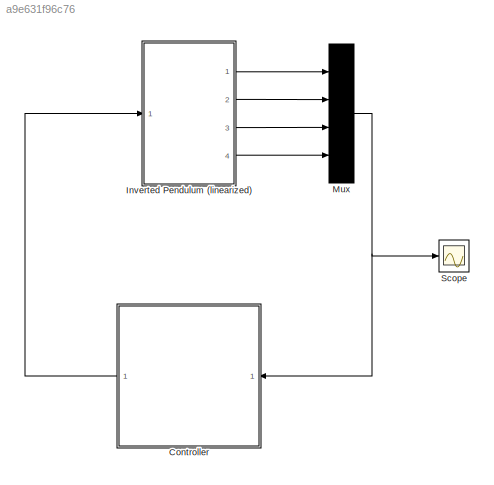
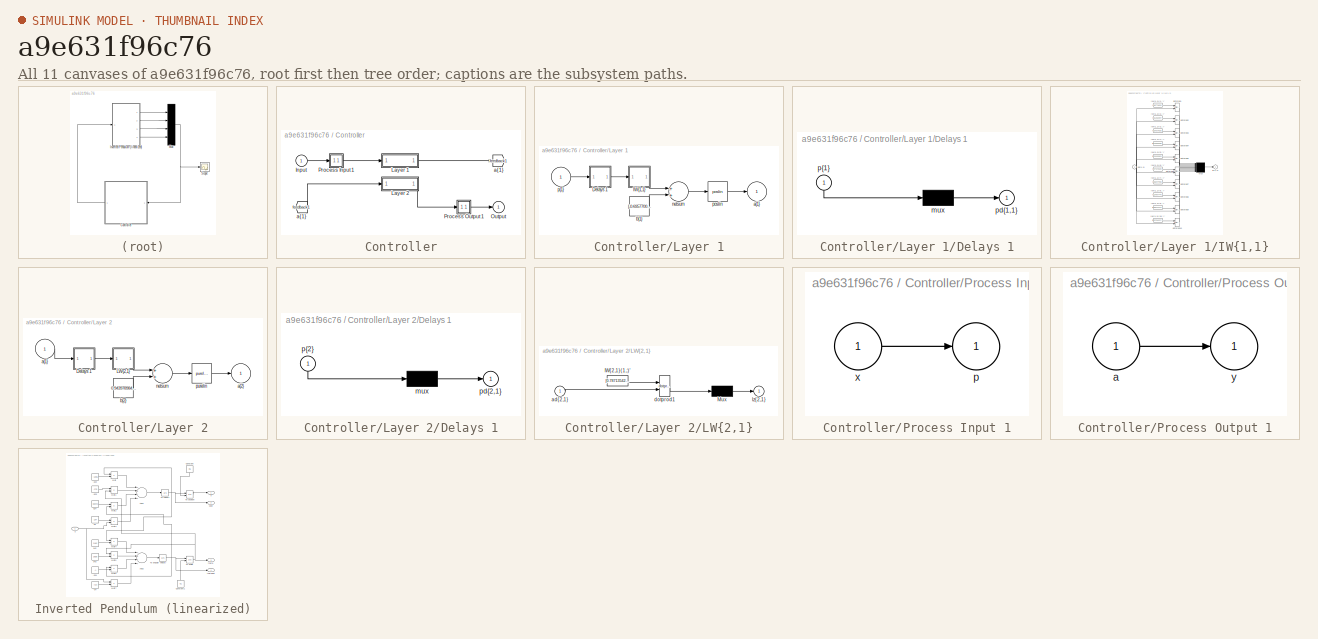
[diagram: thumbnail index - all 11 canvases of the model, root first then tree order]
MODEL slx_a9e631f96c76
KIND model
CONFIG AbsTol = auto
CONFIG EnableMultiTasking = off
CONFIG FixedStep = auto
CONFIG MaxStep = auto
CONFIG MinStep = auto
CONFIG RelTol = 1e-3
CONFIG SampleTimeConstraint = Unconstrained
CONFIG Solver = VariableStepAuto
CONFIG SolverName = VariableStepAuto
CONFIG StartTime = 0.0
CONFIG StopTime = 10.0
BLOCK [SubSystem] Controller
  Ports = [1, 1]
  RequestExecContextInheritance = off
  Variant = off
BLOCK [From] Controller/ a{1} 
  GotoTag = feedback1
BLOCK [Inport] Controller/Input
  IconDisplay = Port number
  PortDimensions = 4
BLOCK [SubSystem] Controller/Layer 1
  Ports = [1, 1]
  RequestExecContextInheritance = off
  Variant = off
BLOCK [SubSystem] Controller/Layer 1/Delays 1
  Ports = [1, 1]
  RequestExecContextInheritance = off
  Variant = off
BLOCK [Mux] Controller/Layer 1/Delays 1/mux
  Inputs = 1
  Ports = [1, 1]
BLOCK [Outport] Controller/Layer 1/Delays 1/pd{1,1}
  IconDisplay = Port number
BLOCK [Inport] Controller/Layer 1/Delays 1/p{1}
  IconDisplay = Port number
  PortDimensions = 4
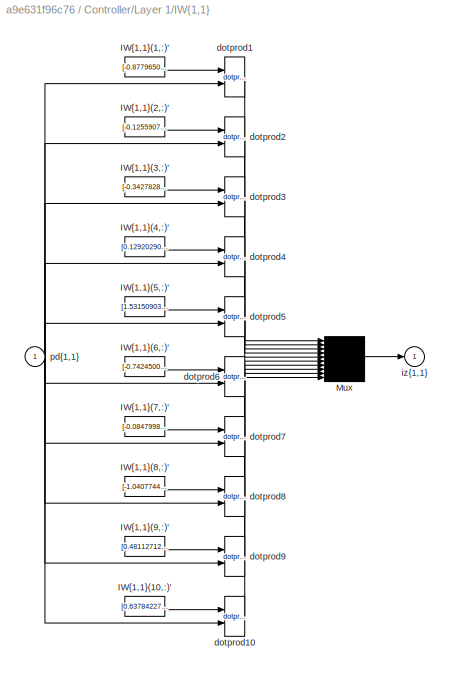
BLOCK [SubSystem] Controller/Layer 1/IW{1,1}
  Ports = [1, 1]
  RequestExecContextInheritance = off
  Variant = off
BLOCK [Constant] Controller/Layer 1/IW{1,1}/IW{1,1}(1,:)'
  Value = [-0.87796503564738704;0.49901100618950317;0.71454036933225906;0.60627043227243305]
BLOCK [Constant] Controller/Layer 1/IW{1,1}/IW{1,1}(10,:)'
  Value = [0.63784227733975685;-0.5302537729748027;-1.09627429383206;-0.5567973678491891]
BLOCK [Constant] Controller/Layer 1/IW{1,1}/IW{1,1}(2,:)'
  Value = [-0.12559077276017769;-0.71710082085226234;0.25209344354354601;0.061115705218528202]
BLOCK [Constant] Controller/Layer 1/IW{1,1}/IW{1,1}(3,:)'
  Value = [-0.3427828502492371;-0.067392433108730207;-0.69651510406602613;-1.0038188990663375]
BLOCK [Constant] Controller/Layer 1/IW{1,1}/IW{1,1}(4,:)'
  Value = [0.12920290928565503;-0.69232795911020539;0.1455637388859069;0.41597125707816279]
BLOCK [Constant] Controller/Layer 1/IW{1,1}/IW{1,1}(5,:)'
  Value = [1.5315090386213615;2.2947881767078333;3.3986928369152865;0.28470496984223509]
BLOCK [Constant] Controller/Layer 1/IW{1,1}/IW{1,1}(6,:)'
  Value = [-0.74245009986607446;0.61288627274328555;0.80629100358006001;0.3139689927938778]
BLOCK [Constant] Controller/Layer 1/IW{1,1}/IW{1,1}(7,:)'
  Value = [-0.084799845846560029;-1.3518486101793064;-6.2318932550801325;-1.8592906328174361]
BLOCK [Constant] Controller/Layer 1/IW{1,1}/IW{1,1}(8,:)'
  Value = [-1.0407744506937988;0.36186145121637042;-0.11679802196322907;-0.39066879861826909]
BLOCK [Constant] Controller/Layer 1/IW{1,1}/IW{1,1}(9,:)'
  Value = [0.48112712388942463;-0.46653834697750002;-1.8632540329353928;-0.7925217525254632]
BLOCK [Mux] Controller/Layer 1/IW{1,1}/Mux
  Inputs = 10
  Ports = [10, 1]
BLOCK [Reference] Controller/Layer 1/IW{1,1}/dotprod1  REF=neural/Weight Functions/dotprod
  Ports = [2, 1]
  SourceBlock = neural/Weight Functions/dotprod
  SourceProductBaseCode = NN
  SourceProductName = Neural Network Toolbox
  SourceType = DOTPROD
BLOCK [Reference] Controller/Layer 1/IW{1,1}/dotprod10  REF=neural/Weight Functions/dotprod
  Ports = [2, 1]
  SourceBlock = neural/Weight Functions/dotprod
  SourceProductBaseCode = NN
  SourceProductName = Neural Network Toolbox
  SourceType = DOTPROD
BLOCK [Reference] Controller/Layer 1/IW{1,1}/dotprod2  REF=neural/Weight Functions/dotprod
  Ports = [2, 1]
  SourceBlock = neural/Weight Functions/dotprod
  SourceProductBaseCode = NN
  SourceProductName = Neural Network Toolbox
  SourceType = DOTPROD
BLOCK [Reference] Controller/Layer 1/IW{1,1}/dotprod3  REF=neural/Weight Functions/dotprod
  Ports = [2, 1]
  SourceBlock = neural/Weight Functions/dotprod
  SourceProductBaseCode = NN
  SourceProductName = Neural Network Toolbox
  SourceType = DOTPROD
BLOCK [Reference] Controller/Layer 1/IW{1,1}/dotprod4  REF=neural/Weight Functions/dotprod
  Ports = [2, 1]
  SourceBlock = neural/Weight Functions/dotprod
  SourceProductBaseCode = NN
  SourceProductName = Neural Network Toolbox
  SourceType = DOTPROD
BLOCK [Reference] Controller/Layer 1/IW{1,1}/dotprod5  REF=neural/Weight Functions/dotprod
  Ports = [2, 1]
  SourceBlock = neural/Weight Functions/dotprod
  SourceProductBaseCode = NN
  SourceProductName = Neural Network Toolbox
  SourceType = DOTPROD
BLOCK [Reference] Controller/Layer 1/IW{1,1}/dotprod6  REF=neural/Weight Functions/dotprod
  Ports = [2, 1]
  SourceBlock = neural/Weight Functions/dotprod
  SourceProductBaseCode = NN
  SourceProductName = Neural Network Toolbox
  SourceType = DOTPROD
BLOCK [Reference] Controller/Layer 1/IW{1,1}/dotprod7  REF=neural/Weight Functions/dotprod
  Ports = [2, 1]
  SourceBlock = neural/Weight Functions/dotprod
  SourceProductBaseCode = NN
  SourceProductName = Neural Network Toolbox
  SourceType = DOTPROD
BLOCK [Reference] Controller/Layer 1/IW{1,1}/dotprod8  REF=neural/Weight Functions/dotprod
  Ports = [2, 1]
  SourceBlock = neural/Weight Functions/dotprod
  SourceProductBaseCode = NN
  SourceProductName = Neural Network Toolbox
  SourceType = DOTPROD
BLOCK [Reference] Controller/Layer 1/IW{1,1}/dotprod9  REF=neural/Weight Functions/dotprod
  Ports = [2, 1]
  SourceBlock = neural/Weight Functions/dotprod
  SourceProductBaseCode = NN
  SourceProductName = Neural Network Toolbox
  SourceType = DOTPROD
BLOCK [Outport] Controller/Layer 1/IW{1,1}/iz{1,1}
  IconDisplay = Port number
BLOCK [Inport] Controller/Layer 1/IW{1,1}/pd{1,1}
  IconDisplay = Port number
  PortDimensions = 4
BLOCK [Outport] Controller/Layer 1/a{1}
  IconDisplay = Port number
  InitialOutput = [0;0;0;0;0;0;0;0;0;0]
BLOCK [Constant] Controller/Layer 1/b{1}
  Value = [-0.695770082956642;-0.59025015285604054;0.85458828482344817;-0.96125374460677404;2.0941624915168702;-0.94182590475219408;1.226247007252744;-0.25044766192840334;0.53655590188584601;0.40367892423748941]
BLOCK [Sum] Controller/Layer 1/netsum
  Inputs = 2
  Ports = [2, 1]
BLOCK [Reference] Controller/Layer 1/poslin  REF=neural/Transfer Functions/poslin
  Ports = [1, 1]
  SourceBlock = neural/Transfer Functions/poslin
  SourceProductBaseCode = NN
  SourceProductName = Neural Network Toolbox
  SourceType = POSLIN
BLOCK [Inport] Controller/Layer 1/p{1}
  IconDisplay = Port number
  PortDimensions = 4
BLOCK [SubSystem] Controller/Layer 2
  Ports = [1, 1]
  RequestExecContextInheritance = off
  Variant = off
BLOCK [SubSystem] Controller/Layer 2/Delays 1
  Ports = [1, 1]
  RequestExecContextInheritance = off
  Variant = off
BLOCK [Mux] Controller/Layer 2/Delays 1/mux
  Inputs = 1
  Ports = [1, 1]
BLOCK [Outport] Controller/Layer 2/Delays 1/pd{2,1}
  IconDisplay = Port number
BLOCK [Inport] Controller/Layer 2/Delays 1/p{2}
  IconDisplay = Port number
  PortDimensions = 10
BLOCK [SubSystem] Controller/Layer 2/LW{2,1}
  Ports = [1, 1]
  RequestExecContextInheritance = off
  Variant = off
BLOCK [Constant] Controller/Layer 2/LW{2,1}/IW{2,1}(1,:)'
  Value = [0.78713542988746454;-0.61752720013607953;-0.77119697366164419;0.87614583201904728;4.2998487518399369;-0.77851724451969462;-6.5049497296170564;3.3055572937914961e-12;-1.8358128336560628;-0.81206546376477995]
BLOCK [Mux] Controller/Layer 2/LW{2,1}/Mux
  Inputs = 1
  Ports = [1, 1]
BLOCK [Inport] Controller/Layer 2/LW{2,1}/ad{2,1}
  IconDisplay = Port number
  PortDimensions = 10
BLOCK [Reference] Controller/Layer 2/LW{2,1}/dotprod1  REF=neural/Weight Functions/dotprod
  Ports = [2, 1]
  SourceBlock = neural/Weight Functions/dotprod
  SourceProductBaseCode = NN
  SourceProductName = Neural Network Toolbox
  SourceType = DOTPROD
BLOCK [Outport] Controller/Layer 2/LW{2,1}/lz{2,1}
  IconDisplay = Port number
BLOCK [Inport] Controller/Layer 2/a{1} 
  IconDisplay = Port number
  PortDimensions = 10
BLOCK [Outport] Controller/Layer 2/a{2}
  IconDisplay = Port number
  InitialOutput = 0
BLOCK [Constant] Controller/Layer 2/b{2}
  Value = 0.94397898477322795
BLOCK [Sum] Controller/Layer 2/netsum
  Inputs = 2
  Ports = [2, 1]
BLOCK [Reference] Controller/Layer 2/purelin  REF=neural/Transfer Functions/purelin
  Ports = [1, 1]
  SourceBlock = neural/Transfer Functions/purelin
  SourceProductBaseCode = NN
  SourceProductName = Neural Network Toolbox
  SourceType = PURELIN
BLOCK [Outport] Controller/Output
  IconDisplay = Port number
  InitialOutput = 0
BLOCK [SubSystem] Controller/Process Input 1
  Ports = [1, 1]
  RequestExecContextInheritance = off
  Variant = off
BLOCK [Outport] Controller/Process Input 1/p
  IconDisplay = Port number
  PortDimensions = 4
BLOCK [Inport] Controller/Process Input 1/x
  IconDisplay = Port number
  PortDimensions = 4
BLOCK [SubSystem] Controller/Process Output 1
  Ports = [1, 1]
  RequestExecContextInheritance = off
  Variant = off
BLOCK [Inport] Controller/Process Output 1/a
  IconDisplay = Port number
  PortDimensions = 1
BLOCK [Outport] Controller/Process Output 1/y
  IconDisplay = Port number
  PortDimensions = 1
BLOCK [Goto] Controller/a{1}
  GotoTag = feedback1
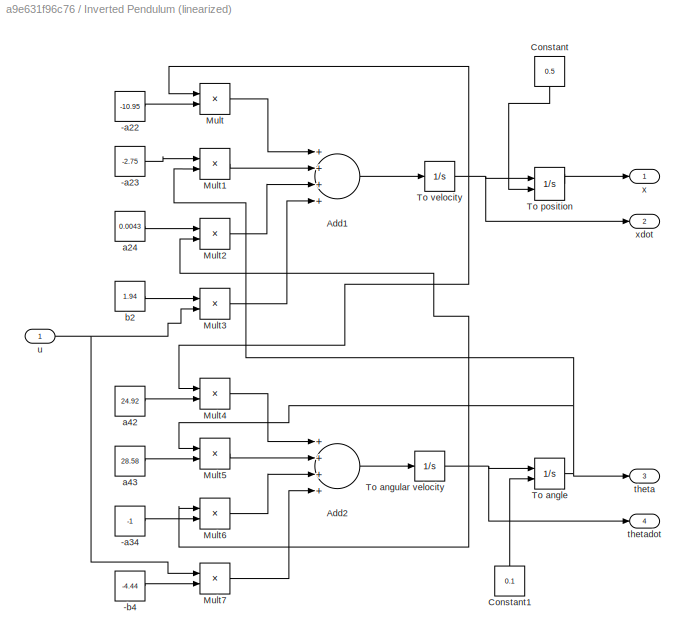
BLOCK [SubSystem] Inverted Pendulum (linearized)
  Ports = [1, 4]
  RequestExecContextInheritance = off
  Variant = off
BLOCK [Constant] Inverted Pendulum (linearized)/-a22
  Value = -10.95
BLOCK [Constant] Inverted Pendulum (linearized)/-a23
  Value = -2.75
BLOCK [Constant] Inverted Pendulum (linearized)/-a34
  Value = -1
BLOCK [Constant] Inverted Pendulum (linearized)/-b4
  Value = -4.44
BLOCK [Sum] Inverted Pendulum (linearized)/Add1
  InputSameDT = off
  Inputs = ++++
  OutDataTypeStr = Inherit: Inherit via internal rule
  Ports = [4, 1]
  SaturateOnIntegerOverflow = off
BLOCK [Sum] Inverted Pendulum (linearized)/Add2
  InputSameDT = off
  Inputs = ++++
  OutDataTypeStr = Inherit: Inherit via internal rule
  Ports = [4, 1]
  SaturateOnIntegerOverflow = off
BLOCK [Constant] Inverted Pendulum (linearized)/Constant
  Value = 0.5
BLOCK [Constant] Inverted Pendulum (linearized)/Constant1
  Value = 0.1
BLOCK [Product] Inverted Pendulum (linearized)/Mult
  InputSameDT = off
  Inputs = **
  OutDataTypeStr = Inherit: Inherit via internal rule
  Ports = [2, 1]
  RndMeth = Floor
  SaturateOnIntegerOverflow = off
BLOCK [Product] Inverted Pendulum (linearized)/Mult1
  InputSameDT = off
  Inputs = **
  OutDataTypeStr = Inherit: Inherit via internal rule
  Ports = [2, 1]
  RndMeth = Floor
  SaturateOnIntegerOverflow = off
BLOCK [Product] Inverted Pendulum (linearized)/Mult2
  InputSameDT = off
  Inputs = **
  OutDataTypeStr = Inherit: Inherit via internal rule
  Ports = [2, 1]
  RndMeth = Floor
  SaturateOnIntegerOverflow = off
BLOCK [Product] Inverted Pendulum (linearized)/Mult3
  InputSameDT = off
  Inputs = **
  OutDataTypeStr = Inherit: Inherit via internal rule
  Ports = [2, 1]
  RndMeth = Floor
  SaturateOnIntegerOverflow = off
BLOCK [Product] Inverted Pendulum (linearized)/Mult4
  InputSameDT = off
  Inputs = **
  OutDataTypeStr = Inherit: Inherit via internal rule
  Ports = [2, 1]
  RndMeth = Floor
  SaturateOnIntegerOverflow = off
BLOCK [Product] Inverted Pendulum (linearized)/Mult5
  InputSameDT = off
  Inputs = **
  OutDataTypeStr = Inherit: Inherit via internal rule
  Ports = [2, 1]
  RndMeth = Floor
  SaturateOnIntegerOverflow = off
BLOCK [Product] Inverted Pendulum (linearized)/Mult6
  InputSameDT = off
  Inputs = **
  OutDataTypeStr = Inherit: Inherit via internal rule
  Ports = [2, 1]
  RndMeth = Floor
  SaturateOnIntegerOverflow = off
BLOCK [Product] Inverted Pendulum (linearized)/Mult7
  InputSameDT = off
  Inputs = **
  OutDataTypeStr = Inherit: Inherit via internal rule
  Ports = [2, 1]
  RndMeth = Floor
  SaturateOnIntegerOverflow = off
BLOCK [Integrator] Inverted Pendulum (linearized)/To angle
  InitialCondition = 1.5
  InitialConditionSource = external
  Ports = [2, 1]
BLOCK [Integrator] Inverted Pendulum (linearized)/To angular velocity
  Ports = [1, 1]
BLOCK [Integrator] Inverted Pendulum (linearized)/To position
  InitialCondition = 1
  InitialConditionSource = external
  Ports = [2, 1]
BLOCK [Integrator] Inverted Pendulum (linearized)/To velocity
  Ports = [1, 1]
BLOCK [Constant] Inverted Pendulum (linearized)/a24
  Value = 0.0043
BLOCK [Constant] Inverted Pendulum (linearized)/a42
  Value = 24.92
BLOCK [Constant] Inverted Pendulum (linearized)/a43
  Value = 28.58
BLOCK [Constant] Inverted Pendulum (linearized)/b2
  Value = 1.94
BLOCK [Outport] Inverted Pendulum (linearized)/theta
  IconDisplay = Port number
  Port = 3
BLOCK [Outport] Inverted Pendulum (linearized)/thetadot
  IconDisplay = Port number
  Port = 4
BLOCK [Inport] Inverted Pendulum (linearized)/u
  IconDisplay = Port number
BLOCK [Outport] Inverted Pendulum (linearized)/x
  IconDisplay = Port number
BLOCK [Outport] Inverted Pendulum (linearized)/xdot
  IconDisplay = Port number
  Port = 2
BLOCK [Mux] Mux
  DisplayOption = bar
  Ports = [4, 1]
BLOCK [Scope] Scope
  NumInputPorts = 1
  Ports = [1]
  ScopeSpecificationString = Simulink.scopes.TimeScopeBlockCfg('CurrentConfiguration', extmgr.ConfigurationSet(extmgr.Configuration('Core','General UI',true),extmgr.Configuration('Core','Source UI',true),extmgr.Configuration('Sources','WiredSimulink',true),extmgr.Configuration('Visuals','Time Domain',true,'SerializedDisplays',{struct('MinYLimReal','-0.91488','MaxYLimReal','0.78197','YLabelReal','','MinYLimMag','0.00000','MaxY...<+1455ch>
LINE Controller/ a{1} :1 -> Controller/Layer 2:1
LINE Controller/Input:1 -> Controller/Process Input 1:1
LINE Controller/Layer 1/Delays 1/mux:1 -> Controller/Layer 1/Delays 1/pd{1,1}:1
LINE Controller/Layer 1/Delays 1/p{1}:1 -> Controller/Layer 1/Delays 1/mux:1
LINE Controller/Layer 1/Delays 1:1 -> Controller/Layer 1/IW{1,1}:1
LINE Controller/Layer 1/IW{1,1}/IW{1,1}(1,:)':1 -> Controller/Layer 1/IW{1,1}/dotprod1:1
LINE Controller/Layer 1/IW{1,1}/IW{1,1}(10,:)':1 -> Controller/Layer 1/IW{1,1}/dotprod10:1
LINE Controller/Layer 1/IW{1,1}/IW{1,1}(2,:)':1 -> Controller/Layer 1/IW{1,1}/dotprod2:1
LINE Controller/Layer 1/IW{1,1}/IW{1,1}(3,:)':1 -> Controller/Layer 1/IW{1,1}/dotprod3:1
LINE Controller/Layer 1/IW{1,1}/IW{1,1}(4,:)':1 -> Controller/Layer 1/IW{1,1}/dotprod4:1
LINE Controller/Layer 1/IW{1,1}/IW{1,1}(5,:)':1 -> Controller/Layer 1/IW{1,1}/dotprod5:1
LINE Controller/Layer 1/IW{1,1}/IW{1,1}(6,:)':1 -> Controller/Layer 1/IW{1,1}/dotprod6:1
LINE Controller/Layer 1/IW{1,1}/IW{1,1}(7,:)':1 -> Controller/Layer 1/IW{1,1}/dotprod7:1
LINE Controller/Layer 1/IW{1,1}/IW{1,1}(8,:)':1 -> Controller/Layer 1/IW{1,1}/dotprod8:1
LINE Controller/Layer 1/IW{1,1}/IW{1,1}(9,:)':1 -> Controller/Layer 1/IW{1,1}/dotprod9:1
LINE Controller/Layer 1/IW{1,1}/Mux:1 -> Controller/Layer 1/IW{1,1}/iz{1,1}:1
LINE Controller/Layer 1/IW{1,1}/dotprod10:1 -> Controller/Layer 1/IW{1,1}/Mux:10
LINE Controller/Layer 1/IW{1,1}/dotprod1:1 -> Controller/Layer 1/IW{1,1}/Mux:1
LINE Controller/Layer 1/IW{1,1}/dotprod2:1 -> Controller/Layer 1/IW{1,1}/Mux:2
LINE Controller/Layer 1/IW{1,1}/dotprod3:1 -> Controller/Layer 1/IW{1,1}/Mux:3
LINE Controller/Layer 1/IW{1,1}/dotprod4:1 -> Controller/Layer 1/IW{1,1}/Mux:4
LINE Controller/Layer 1/IW{1,1}/dotprod5:1 -> Controller/Layer 1/IW{1,1}/Mux:5
LINE Controller/Layer 1/IW{1,1}/dotprod6:1 -> Controller/Layer 1/IW{1,1}/Mux:6
LINE Controller/Layer 1/IW{1,1}/dotprod7:1 -> Controller/Layer 1/IW{1,1}/Mux:7
LINE Controller/Layer 1/IW{1,1}/dotprod8:1 -> Controller/Layer 1/IW{1,1}/Mux:8
LINE Controller/Layer 1/IW{1,1}/dotprod9:1 -> Controller/Layer 1/IW{1,1}/Mux:9
NET Controller/Layer 1/IW{1,1}/pd{1,1}:1 -> Controller/Layer 1/IW{1,1}/dotprod10:2, Controller/Layer 1/IW{1,1}/dotprod1:2, Controller/Layer 1/IW{1,1}/dotprod2:2, Controller/Layer 1/IW{1,1}/dotprod3:2, Controller/Layer 1/IW{1,1}/dotprod4:2, Controller/Layer 1/IW{1,1}/dotprod5:2, Controller/Layer 1/IW{1,1}/dotprod6:2, Controller/Layer 1/IW{1,1}/dotprod7:2, Controller/Layer 1/IW{1,1}/dotprod8:2, Controller/Layer 1/IW{1,1}/dotprod9:2
LINE Controller/Layer 1/IW{1,1}:1 -> Controller/Layer 1/netsum:1
LINE Controller/Layer 1/b{1}:1 -> Controller/Layer 1/netsum:2
LINE Controller/Layer 1/netsum:1 -> Controller/Layer 1/poslin:1
LINE Controller/Layer 1/poslin:1 -> Controller/Layer 1/a{1}:1
LINE Controller/Layer 1/p{1}:1 -> Controller/Layer 1/Delays 1:1
LINE Controller/Layer 1:1 -> Controller/a{1}:1
LINE Controller/Layer 2/Delays 1/mux:1 -> Controller/Layer 2/Delays 1/pd{2,1}:1
LINE Controller/Layer 2/Delays 1/p{2}:1 -> Controller/Layer 2/Delays 1/mux:1
LINE Controller/Layer 2/Delays 1:1 -> Controller/Layer 2/LW{2,1}:1
LINE Controller/Layer 2/LW{2,1}/IW{2,1}(1,:)':1 -> Controller/Layer 2/LW{2,1}/dotprod1:1
LINE Controller/Layer 2/LW{2,1}/Mux:1 -> Controller/Layer 2/LW{2,1}/lz{2,1}:1
LINE Controller/Layer 2/LW{2,1}/ad{2,1}:1 -> Controller/Layer 2/LW{2,1}/dotprod1:2
LINE Controller/Layer 2/LW{2,1}/dotprod1:1 -> Controller/Layer 2/LW{2,1}/Mux:1
LINE Controller/Layer 2/LW{2,1}:1 -> Controller/Layer 2/netsum:1
LINE Controller/Layer 2/a{1} :1 -> Controller/Layer 2/Delays 1:1
LINE Controller/Layer 2/b{2}:1 -> Controller/Layer 2/netsum:2
LINE Controller/Layer 2/netsum:1 -> Controller/Layer 2/purelin:1
LINE Controller/Layer 2/purelin:1 -> Controller/Layer 2/a{2}:1
LINE Controller/Layer 2:1 -> Controller/Process Output 1:1
LINE Controller/Process Input 1/x:1 -> Controller/Process Input 1/p:1
LINE Controller/Process Input 1:1 -> Controller/Layer 1:1
LINE Controller/Process Output 1/a:1 -> Controller/Process Output 1/y:1
LINE Controller/Process Output 1:1 -> Controller/Output:1
LINE Controller:1 -> Inverted Pendulum (linearized):1
LINE Inverted Pendulum (linearized)/-a22:1 -> Inverted Pendulum (linearized)/Mult:2
LINE Inverted Pendulum (linearized)/-a23:1 -> Inverted Pendulum (linearized)/Mult1:1
LINE Inverted Pendulum (linearized)/-a34:1 -> Inverted Pendulum (linearized)/Mult6:2
LINE Inverted Pendulum (linearized)/-b4:1 -> Inverted Pendulum (linearized)/Mult7:2
LINE Inverted Pendulum (linearized)/Add1:1 -> Inverted Pendulum (linearized)/To velocity:1
LINE Inverted Pendulum (linearized)/Add2:1 -> Inverted Pendulum (linearized)/To angular velocity:1
LINE Inverted Pendulum (linearized)/Constant1:1 -> Inverted Pendulum (linearized)/To angle:2
LINE Inverted Pendulum (linearized)/Constant:1 -> Inverted Pendulum (linearized)/To position:2
LINE Inverted Pendulum (linearized)/Mult1:1 -> Inverted Pendulum (linearized)/Add1:2
LINE Inverted Pendulum (linearized)/Mult2:1 -> Inverted Pendulum (linearized)/Add1:3
LINE Inverted Pendulum (linearized)/Mult3:1 -> Inverted Pendulum (linearized)/Add1:4
LINE Inverted Pendulum (linearized)/Mult4:1 -> Inverted Pendulum (linearized)/Add2:1
LINE Inverted Pendulum (linearized)/Mult5:1 -> Inverted Pendulum (linearized)/Add2:2
LINE Inverted Pendulum (linearized)/Mult6:1 -> Inverted Pendulum (linearized)/Add2:3
LINE Inverted Pendulum (linearized)/Mult7:1 -> Inverted Pendulum (linearized)/Add2:4
LINE Inverted Pendulum (linearized)/Mult:1 -> Inverted Pendulum (linearized)/Add1:1
NET Inverted Pendulum (linearized)/To angle:1 -> Inverted Pendulum (linearized)/Mult1:2, Inverted Pendulum (linearized)/Mult5:1, Inverted Pendulum (linearized)/theta:1
NET Inverted Pendulum (linearized)/To angular velocity:1 -> Inverted Pendulum (linearized)/Mult2:2, Inverted Pendulum (linearized)/Mult6:1, Inverted Pendulum (linearized)/To angle:1, Inverted Pendulum (linearized)/thetadot:1
LINE Inverted Pendulum (linearized)/To position:1 -> Inverted Pendulum (linearized)/x:1
NET Inverted Pendulum (linearized)/To velocity:1 -> Inverted Pendulum (linearized)/Mult4:1, Inverted Pendulum (linearized)/Mult:1, Inverted Pendulum (linearized)/To position:1, Inverted Pendulum (linearized)/xdot:1
LINE Inverted Pendulum (linearized)/a24:1 -> Inverted Pendulum (linearized)/Mult2:1
LINE Inverted Pendulum (linearized)/a42:1 -> Inverted Pendulum (linearized)/Mult4:2
LINE Inverted Pendulum (linearized)/a43:1 -> Inverted Pendulum (linearized)/Mult5:2
LINE Inverted Pendulum (linearized)/b2:1 -> Inverted Pendulum (linearized)/Mult3:1
NET Inverted Pendulum (linearized)/u:1 -> Inverted Pendulum (linearized)/Mult3:2, Inverted Pendulum (linearized)/Mult7:1
LINE Inverted Pendulum (linearized):1 -> Mux:1
LINE Inverted Pendulum (linearized):2 -> Mux:2
LINE Inverted Pendulum (linearized):3 -> Mux:3
LINE Inverted Pendulum (linearized):4 -> Mux:4
NET Mux:1 -> Controller:1, Scope:1
note: NET lines group one-source signal fan-out (src -> all destinations, sorted); 1:1 wires keep LINE
